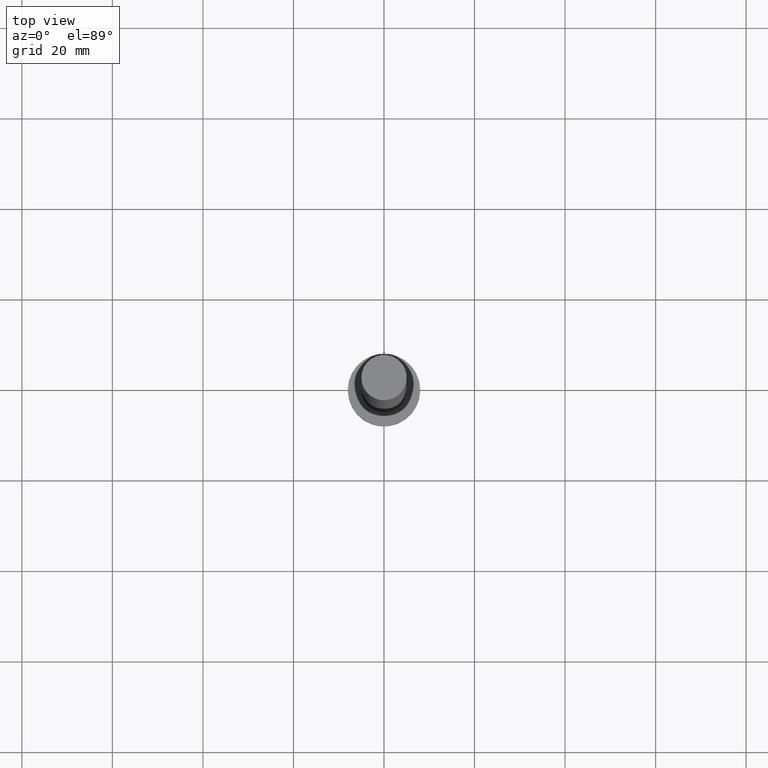
[diagram: clean part render]
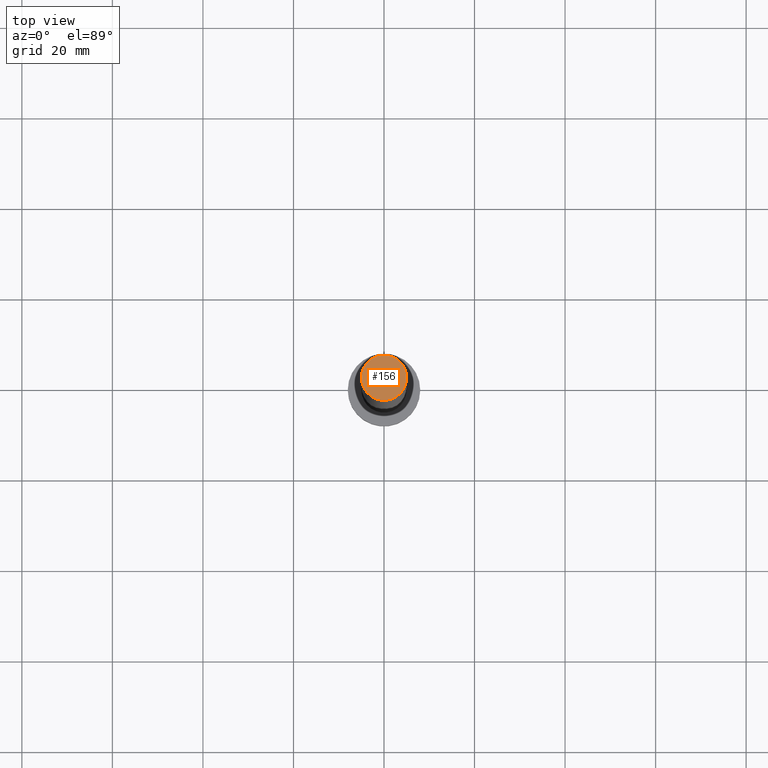
[diagram: same view with one face highlighted and labeled with its STEP entity id]
A machine part, top view. The second image highlights one B-rep face of the part: STEP entity #156.
In plain terms, the highlighted planar face has unit normal (0, 0, 1).
Its self-contained STEP definition (entity closure, byte-faithful):
#11 = DIRECTION ( 'NONE',  ( 0.000000000000000000, 0.000000000000000000, 1.000000000000000000 ) ) ;
#16 = VERTEX_POINT ( 'NONE', #199 ) ;
#30 = CARTESIAN_POINT ( 'NONE',  ( -5.000000000000000888, 0.000000000000000000, 160.0000000000000000 ) ) ;
#31 = CARTESIAN_POINT ( 'NONE',  ( 0.000000000000000000, 0.000000000000000000, 160.0000000000000000 ) ) ;
#40 = CARTESIAN_POINT ( 'NONE',  ( 0.000000000000000000, 0.000000000000000000, 160.0000000000000000 ) ) ;
#63 = AXIS2_PLACEMENT_3D ( 'NONE', #31, #227, #151 ) ;
#64 = ORIENTED_EDGE ( 'NONE', *, *, #79, .T. ) ;
#70 = FACE_OUTER_BOUND ( 'NONE', #241, .T. ) ;
#79 = EDGE_CURVE ( 'NONE', #16, #176, #167, .T. ) ;
#82 = AXIS2_PLACEMENT_3D ( 'NONE', #169, #11, #111 ) ;
#111 = DIRECTION ( 'NONE',  ( 1.000000000000000000, 0.000000000000000000, 0.000000000000000000 ) ) ;
#151 = DIRECTION ( 'NONE',  ( 1.000000000000000000, 0.000000000000000000, -0.000000000000000000 ) ) ;
#156 = ADVANCED_FACE ( 'NONE', ( #70 ), #230, .T. ) ;
#164 = CIRCLE ( 'NONE', #82, 5.000000000000000888 ) ;
#167 = CIRCLE ( 'NONE', #209, 5.000000000000000888 ) ;
#169 = CARTESIAN_POINT ( 'NONE',  ( 0.000000000000000000, 0.000000000000000000, 160.0000000000000000 ) ) ;
#176 = VERTEX_POINT ( 'NONE', #30 ) ;
#183 = DIRECTION ( 'NONE',  ( 1.000000000000000000, 0.000000000000000000, 0.000000000000000000 ) ) ;
#199 = CARTESIAN_POINT ( 'NONE',  ( 5.000000000000000888, 6.123233995736767268E-16, 160.0000000000000000 ) ) ;
#201 = DIRECTION ( 'NONE',  ( 0.000000000000000000, 0.000000000000000000, 1.000000000000000000 ) ) ;
#209 = AXIS2_PLACEMENT_3D ( 'NONE', #40, #201, #183 ) ;
#216 = EDGE_CURVE ( 'NONE', #176, #16, #164, .T. ) ;
#227 = DIRECTION ( 'NONE',  ( 0.000000000000000000, 0.000000000000000000, 1.000000000000000000 ) ) ;
#230 = PLANE ( 'NONE',  #63 ) ;
#238 = ORIENTED_EDGE ( 'NONE', *, *, #216, .T. ) ;
#241 = EDGE_LOOP ( 'NONE', ( #238, #64 ) ) ;